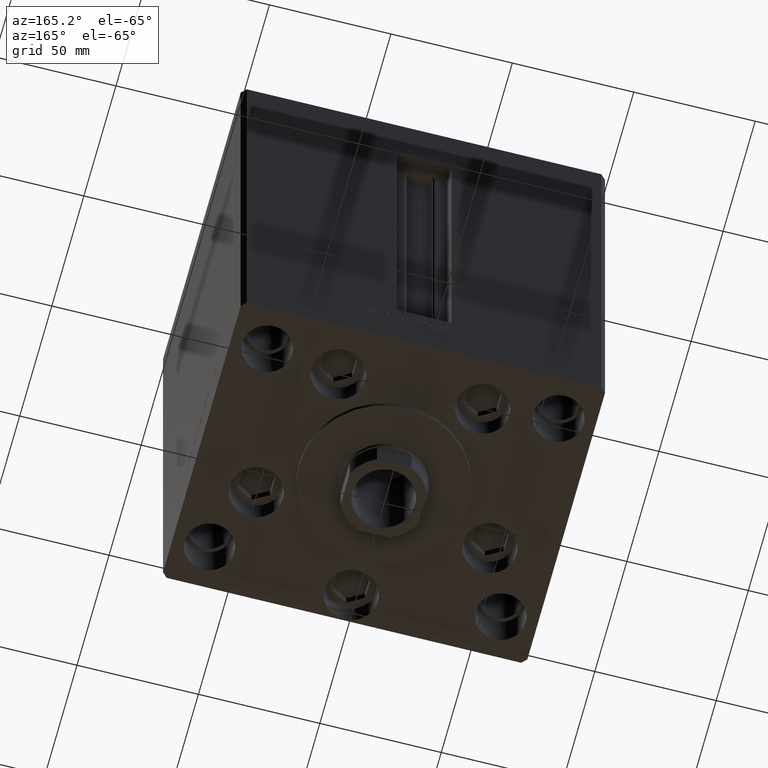
[diagram: clean part render]
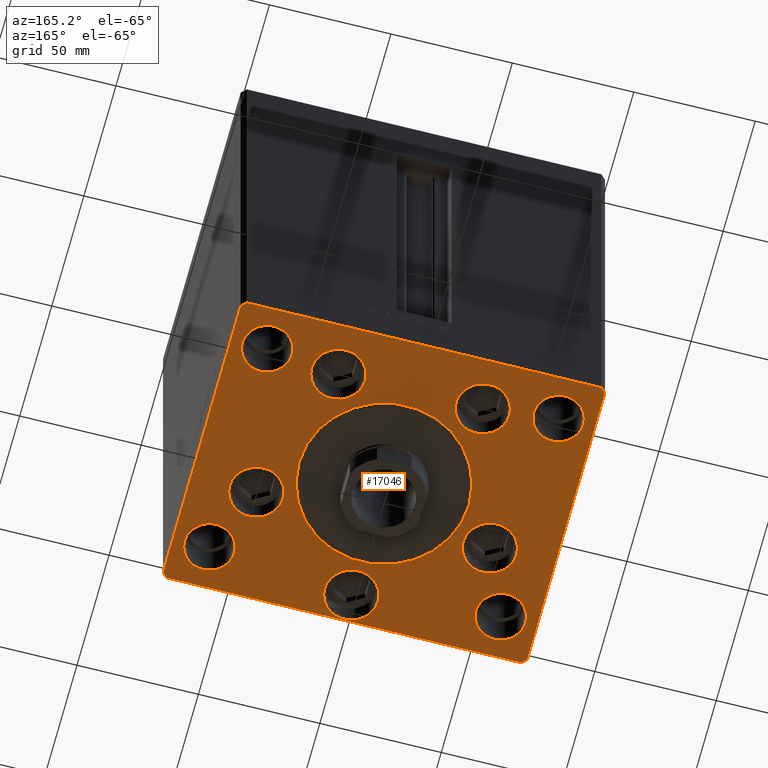
[diagram: same view with one face highlighted and labeled with its STEP entity id]
A machine part, auxiliary view. The second image highlights one B-rep face of the part: STEP entity #17046.
In plain terms, the highlighted planar face has unit normal (0, 0, -1).
Its self-contained STEP definition (entity closure, byte-faithful):
#20 = LINE ( 'NONE', #3733, #6357 ) ;
#53 = DIRECTION ( 'NONE',  ( 0.000000000000000000, 0.000000000000000000, 1.000000000000000000 ) ) ;
#216 = CARTESIAN_POINT ( 'NONE',  ( 0.000000000000000000, 0.000000000000000000, 0.000000000000000000 ) ) ;
#555 = CIRCLE ( 'NONE', #14800, 11.00000000000000355 ) ;
#596 = ORIENTED_EDGE ( 'NONE', *, *, #29834, .F. ) ;
#1019 = DIRECTION ( 'NONE',  ( 1.000000000000000000, 7.604267291953125828E-16, 0.000000000000000000 ) ) ;
#1201 = ORIENTED_EDGE ( 'NONE', *, *, #15099, .T. ) ;
#1424 = DIRECTION ( 'NONE',  ( -0.7071067811865549002, -0.7071067811865401342, 0.000000000000000000 ) ) ;
#1475 = CIRCLE ( 'NONE', #12538, 10.24999999999999467 ) ;
#1541 = CARTESIAN_POINT ( 'NONE',  ( 60.00000000000000000, 45.00000000000000000, 0.000000000000000000 ) ) ;
#1548 = VERTEX_POINT ( 'NONE', #33036 ) ;
#1617 = DIRECTION ( 'NONE',  ( 0.000000000000000000, 0.000000000000000000, 1.000000000000000000 ) ) ;
#2100 = VERTEX_POINT ( 'NONE', #2256 ) ;
#2256 = CARTESIAN_POINT ( 'NONE',  ( -73.00000000000001421, -62.50000000000002842, 0.000000000000000000 ) ) ;
#2478 = ORIENTED_EDGE ( 'NONE', *, *, #35530, .F. ) ;
#2622 = DIRECTION ( 'NONE',  ( 0.000000000000000000, 0.000000000000000000, 1.000000000000000000 ) ) ;
#2644 = ORIENTED_EDGE ( 'NONE', *, *, #39105, .F. ) ;
#3153 = EDGE_CURVE ( 'NONE', #23033, #22807, #44744, .T. ) ;
#3193 = ORIENTED_EDGE ( 'NONE', *, *, #23456, .F. ) ;
#3212 = FACE_OUTER_BOUND ( 'NONE', #3582, .T. ) ;
#3232 = CIRCLE ( 'NONE', #32426, 10.25000000000000178 ) ;
#3278 = CIRCLE ( 'NONE', #30095, 11.00000000000000355 ) ;
#3454 = DIRECTION ( 'NONE',  ( 1.000000000000000000, 0.000000000000000000, 0.000000000000000000 ) ) ;
#3484 = EDGE_CURVE ( 'NONE', #11211, #1548, #15521, .T. ) ;
#3582 = EDGE_LOOP ( 'NONE', ( #11530, #18987, #1201, #7424, #20751, #32318, #40150, #26350 ) ) ;
#3733 = CARTESIAN_POINT ( 'NONE',  ( -75.00000000000000000, 60.50000000000000000, 0.000000000000000000 ) ) ;
#3886 = DIRECTION ( 'NONE',  ( 0.000000000000000000, 0.000000000000000000, 1.000000000000000000 ) ) ;
#3925 = CIRCLE ( 'NONE', #23636, 35.00000000000000711 ) ;
#4376 = CIRCLE ( 'NONE', #41523, 11.00000000000000355 ) ;
#4592 = DIRECTION ( 'NONE',  ( 1.000000000000000000, 0.000000000000000000, 0.000000000000000000 ) ) ;
#4864 = DIRECTION ( 'NONE',  ( 1.000000000000000000, 0.000000000000000000, 0.000000000000000000 ) ) ;
#5010 = VERTEX_POINT ( 'NONE', #16107 ) ;
#5378 = LINE ( 'NONE', #12562, #34495 ) ;
#5461 = EDGE_LOOP ( 'NONE', ( #16171, #45464 ) ) ;
#5568 = DIRECTION ( 'NONE',  ( 1.000000000000000000, 0.000000000000000000, 0.000000000000000000 ) ) ;
#5651 = DIRECTION ( 'NONE',  ( 0.000000000000000000, 0.000000000000000000, 1.000000000000000000 ) ) ;
#5964 = AXIS2_PLACEMENT_3D ( 'NONE', #14152, #29227, #14865 ) ;
#6009 = AXIS2_PLACEMENT_3D ( 'NONE', #47197, #13053, #46946 ) ;
#6216 = CARTESIAN_POINT ( 'NONE',  ( 0.000000000000000000, -6.938893903907228378E-15, 0.000000000000000000 ) ) ;
#6357 = VECTOR ( 'NONE', #11409, 1000.000000000000000 ) ;
#6404 = VERTEX_POINT ( 'NONE', #20192 ) ;
#6700 = VERTEX_POINT ( 'NONE', #40184 ) ;
#6969 = CARTESIAN_POINT ( 'NONE',  ( -49.75000000000000000, -45.00000000000000000, 0.000000000000000000 ) ) ;
#6994 = CARTESIAN_POINT ( 'NONE',  ( 60.00000000000000000, 45.00000000000000000, 0.000000000000000000 ) ) ;
#7273 = EDGE_CURVE ( 'NONE', #48582, #32193, #5378, .T. ) ;
#7418 = CARTESIAN_POINT ( 'NONE',  ( 75.00000000000001421, 60.50000000000002842, 0.000000000000000000 ) ) ;
#7424 = ORIENTED_EDGE ( 'NONE', *, *, #23505, .T. ) ;
#7549 = EDGE_LOOP ( 'NONE', ( #31191, #17491 ) ) ;
#7767 = CARTESIAN_POINT ( 'NONE',  ( 49.75000000000000000, 45.00000000000000000, 0.000000000000000000 ) ) ;
#7791 = EDGE_LOOP ( 'NONE', ( #3193, #2644 ) ) ;
#8218 = VERTEX_POINT ( 'NONE', #16866 ) ;
#8571 = VECTOR ( 'NONE', #24242, 1000.000000000000000 ) ;
#8871 = VERTEX_POINT ( 'NONE', #20124 ) ;
#9775 = DIRECTION ( 'NONE',  ( 1.000000000000000000, 0.000000000000000000, 0.000000000000000000 ) ) ;
#9859 = VERTEX_POINT ( 'NONE', #15006 ) ;
#9910 = AXIS2_PLACEMENT_3D ( 'NONE', #32534, #1617, #5568 ) ;
#10165 = CARTESIAN_POINT ( 'NONE',  ( 48.08326112068523628, -16.99999999999998934, 0.000000000000000000 ) ) ;
#10215 = ORIENTED_EDGE ( 'NONE', *, *, #13777, .F. ) ;
#10248 = CARTESIAN_POINT ( 'NONE',  ( -75.00000000000000000, 60.50000000000000000, 0.000000000000000000 ) ) ;
#10423 = EDGE_LOOP ( 'NONE', ( #2478, #21545 ) ) ;
#10626 = DIRECTION ( 'NONE',  ( -0.7071067811865524577, 0.7071067811865426878, 0.000000000000000000 ) ) ;
#11211 = VERTEX_POINT ( 'NONE', #21565 ) ;
#11347 = EDGE_CURVE ( 'NONE', #22807, #48582, #35637, .T. ) ;
#11409 = DIRECTION ( 'NONE',  ( 0.000000000000000000, -1.000000000000000000, 0.000000000000000000 ) ) ;
#11530 = ORIENTED_EDGE ( 'NONE', *, *, #34979, .T. ) ;
#11991 = EDGE_LOOP ( 'NONE', ( #23647, #38042 ) ) ;
#12258 = VECTOR ( 'NONE', #10626, 1000.000000000000000 ) ;
#12538 = AXIS2_PLACEMENT_3D ( 'NONE', #1541, #46815, #35922 ) ;
#12540 = CARTESIAN_POINT ( 'NONE',  ( -48.08326112068523628, -16.99999999999998934, 0.000000000000000000 ) ) ;
#12562 = CARTESIAN_POINT ( 'NONE',  ( -72.99999999999998579, 62.49999999999997158, 0.000000000000000000 ) ) ;
#12596 = CARTESIAN_POINT ( 'NONE',  ( -40.73102073172061921, 41.43749999999997868, 0.000000000000000000 ) ) ;
#12900 = AXIS2_PLACEMENT_3D ( 'NONE', #21638, #2622, #20889 ) ;
#13053 = DIRECTION ( 'NONE',  ( 0.000000000000000000, 0.000000000000000000, 1.000000000000000000 ) ) ;
#13384 = EDGE_CURVE ( 'NONE', #2100, #6700, #15878, .T. ) ;
#13556 = CARTESIAN_POINT ( 'NONE',  ( -35.00000000000000711, -6.938893903907228378E-15, 0.000000000000000000 ) ) ;
#13664 = VERTEX_POINT ( 'NONE', #24624 ) ;
#13777 = EDGE_CURVE ( 'NONE', #27906, #40421, #3925, .T. ) ;
#13876 = DIRECTION ( 'NONE',  ( 0.000000000000000000, 0.000000000000000000, 1.000000000000000000 ) ) ;
#14152 = CARTESIAN_POINT ( 'NONE',  ( -60.00000000000000711, -45.00000000000000000, 0.000000000000000000 ) ) ;
#14234 = CARTESIAN_POINT ( 'NONE',  ( 60.00000000000000711, -45.00000000000000000, 0.000000000000000000 ) ) ;
#14353 = FACE_BOUND ( 'NONE', #11991, .T. ) ;
#14530 = AXIS2_PLACEMENT_3D ( 'NONE', #39549, #5651, #20719 ) ;
#14800 = AXIS2_PLACEMENT_3D ( 'NONE', #10165, #13876, #3454 ) ;
#14865 = DIRECTION ( 'NONE',  ( 1.000000000000000000, 0.000000000000000000, 0.000000000000000000 ) ) ;
#14875 = DIRECTION ( 'NONE',  ( 0.000000000000000000, 0.000000000000000000, 1.000000000000000000 ) ) ;
#15006 = CARTESIAN_POINT ( 'NONE',  ( 70.25000000000000000, 45.00000000000000000, 0.000000000000000000 ) ) ;
#15099 = EDGE_CURVE ( 'NONE', #6700, #13664, #21426, .T. ) ;
#15443 = VECTOR ( 'NONE', #42751, 1000.000000000000114 ) ;
#15521 = CIRCLE ( 'NONE', #9910, 11.00000000000000355 ) ;
#15527 = DIRECTION ( 'NONE',  ( 0.000000000000000000, 1.000000000000000000, 0.000000000000000000 ) ) ;
#15765 = DIRECTION ( 'NONE',  ( 0.000000000000000000, 0.000000000000000000, 1.000000000000000000 ) ) ;
#15789 = CIRCLE ( 'NONE', #16600, 11.00000000000000355 ) ;
#15866 = CARTESIAN_POINT ( 'NONE',  ( 73.00000000000001421, 62.50000000000000000, 0.000000000000000000 ) ) ;
#15878 = LINE ( 'NONE', #46045, #19680 ) ;
#15984 = EDGE_CURVE ( 'NONE', #8871, #5010, #21350, .T. ) ;
#16027 = DIRECTION ( 'NONE',  ( 1.000000000000000000, 0.000000000000000000, 0.000000000000000000 ) ) ;
#16107 = CARTESIAN_POINT ( 'NONE',  ( -49.74999999999999289, 45.00000000000000711, 0.000000000000000000 ) ) ;
#16171 = ORIENTED_EDGE ( 'NONE', *, *, #47708, .F. ) ;
#16219 = EDGE_CURVE ( 'NONE', #38872, #38965, #29276, .T. ) ;
#16480 = EDGE_CURVE ( 'NONE', #25667, #36040, #3232, .T. ) ;
#16600 = AXIS2_PLACEMENT_3D ( 'NONE', #18479, #3886, #23146 ) ;
#16668 = VERTEX_POINT ( 'NONE', #6969 ) ;
#16677 = CIRCLE ( 'NONE', #24574, 11.00000000000000355 ) ;
#16866 = CARTESIAN_POINT ( 'NONE',  ( -59.08326112068523628, -16.99999999999998934, 0.000000000000000000 ) ) ;
#16870 = EDGE_LOOP ( 'NONE', ( #30954, #20675 ) ) ;
#17046 = ADVANCED_FACE ( 'NONE', ( #43771, #21001, #18056, #33140, #36130, #24980, #21252, #14353, #40801, #37103, #3212 ), #41278, .T. ) ;
#17118 = CARTESIAN_POINT ( 'NONE',  ( 11.00000000000000000, -51.00000000000000000, 0.000000000000000000 ) ) ;
#17240 = CARTESIAN_POINT ( 'NONE',  ( 73.00000000000001421, -62.49999999999991473, 0.000000000000000000 ) ) ;
#17491 = ORIENTED_EDGE ( 'NONE', *, *, #16480, .F. ) ;
#17599 = VERTEX_POINT ( 'NONE', #30948 ) ;
#17676 = CIRCLE ( 'NONE', #12900, 35.00000000000000711 ) ;
#17849 = CIRCLE ( 'NONE', #47870, 11.00000000000000000 ) ;
#18056 = FACE_BOUND ( 'NONE', #46239, .T. ) ;
#18081 = CARTESIAN_POINT ( 'NONE',  ( -70.25000000000000000, -45.00000000000000000, 0.000000000000000000 ) ) ;
#18479 = CARTESIAN_POINT ( 'NONE',  ( 29.73102073172061921, 41.43749999999997868, 0.000000000000000000 ) ) ;
#18758 = CARTESIAN_POINT ( 'NONE',  ( 75.00000000000001421, 60.50000000000002842, 0.000000000000000000 ) ) ;
#18782 = CIRCLE ( 'NONE', #21913, 11.00000000000000000 ) ;
#18830 = EDGE_CURVE ( 'NONE', #6404, #34937, #15789, .T. ) ;
#18880 = CIRCLE ( 'NONE', #22821, 11.00000000000000000 ) ;
#18987 = ORIENTED_EDGE ( 'NONE', *, *, #13384, .T. ) ;
#19140 = EDGE_CURVE ( 'NONE', #32193, #41608, #20, .T. ) ;
#19417 = DIRECTION ( 'NONE',  ( 0.000000000000000000, 0.000000000000000000, 1.000000000000000000 ) ) ;
#19680 = VECTOR ( 'NONE', #1019, 1000.000000000000000 ) ;
#19810 = CARTESIAN_POINT ( 'NONE',  ( 73.00000000000001421, 62.50000000000000000, 0.000000000000000000 ) ) ;
#19927 = CARTESIAN_POINT ( 'NONE',  ( 75.00000000000001421, -60.49999999999992184, 0.000000000000000000 ) ) ;
#20105 = CIRCLE ( 'NONE', #38285, 10.24999999999999467 ) ;
#20124 = CARTESIAN_POINT ( 'NONE',  ( -70.25000000000000000, 45.00000000000000711, 0.000000000000000000 ) ) ;
#20192 = CARTESIAN_POINT ( 'NONE',  ( 40.73102073172061921, 41.43749999999997868, 0.000000000000000000 ) ) ;
#20537 = VECTOR ( 'NONE', #48158, 999.9999999999998863 ) ;
#20675 = ORIENTED_EDGE ( 'NONE', *, *, #33636, .F. ) ;
#20719 = DIRECTION ( 'NONE',  ( 1.000000000000000000, 0.000000000000000000, 0.000000000000000000 ) ) ;
#20751 = ORIENTED_EDGE ( 'NONE', *, *, #3153, .T. ) ;
#20818 = EDGE_CURVE ( 'NONE', #5010, #8871, #38000, .T. ) ;
#20889 = DIRECTION ( 'NONE',  ( 1.000000000000000000, 0.000000000000000000, 0.000000000000000000 ) ) ;
#21001 = FACE_BOUND ( 'NONE', #5461, .T. ) ;
#21252 = FACE_BOUND ( 'NONE', #16870, .T. ) ;
#21350 = CIRCLE ( 'NONE', #22934, 10.25000000000000178 ) ;
#21426 = LINE ( 'NONE', #17240, #20537 ) ;
#21490 = CARTESIAN_POINT ( 'NONE',  ( -29.73102073172061921, 41.43749999999997868, 0.000000000000000000 ) ) ;
#21545 = ORIENTED_EDGE ( 'NONE', *, *, #16219, .F. ) ;
#21565 = CARTESIAN_POINT ( 'NONE',  ( 37.08326112068522917, -16.99999999999998934, 0.000000000000000000 ) ) ;
#21638 = CARTESIAN_POINT ( 'NONE',  ( 0.000000000000000000, -6.938893903907228378E-15, 0.000000000000000000 ) ) ;
#21731 = DIRECTION ( 'NONE',  ( 1.000000000000000000, 0.000000000000000000, 0.000000000000000000 ) ) ;
#21774 = DIRECTION ( 'NONE',  ( 1.000000000000000000, 0.000000000000000000, 0.000000000000000000 ) ) ;
#21776 = CIRCLE ( 'NONE', #6009, 10.25000000000000178 ) ;
#21798 = CARTESIAN_POINT ( 'NONE',  ( -60.00000000000000000, 45.00000000000000711, 0.000000000000000000 ) ) ;
#21913 = AXIS2_PLACEMENT_3D ( 'NONE', #37160, #29720, #33202 ) ;
#22029 = CARTESIAN_POINT ( 'NONE',  ( -48.08326112068523628, -16.99999999999998934, 0.000000000000000000 ) ) ;
#22433 = CARTESIAN_POINT ( 'NONE',  ( 29.73102073172061921, 41.43749999999997868, 0.000000000000000000 ) ) ;
#22807 = VERTEX_POINT ( 'NONE', #19810 ) ;
#22821 = AXIS2_PLACEMENT_3D ( 'NONE', #21490, #40787, #21731 ) ;
#22919 = LINE ( 'NONE', #19927, #36450 ) ;
#22934 = AXIS2_PLACEMENT_3D ( 'NONE', #21798, #48761, #16027 ) ;
#23033 = VERTEX_POINT ( 'NONE', #7418 ) ;
#23104 = VERTEX_POINT ( 'NONE', #12596 ) ;
#23146 = DIRECTION ( 'NONE',  ( 1.000000000000000000, 0.000000000000000000, 0.000000000000000000 ) ) ;
#23456 = EDGE_CURVE ( 'NONE', #17599, #8218, #3278, .T. ) ;
#23505 = EDGE_CURVE ( 'NONE', #13664, #23033, #22919, .T. ) ;
#23636 = AXIS2_PLACEMENT_3D ( 'NONE', #6216, #25014, #21774 ) ;
#23647 = ORIENTED_EDGE ( 'NONE', *, *, #20818, .F. ) ;
#24242 = DIRECTION ( 'NONE',  ( -1.000000000000000000, -1.901066822988281950E-16, 0.000000000000000000 ) ) ;
#24280 = EDGE_CURVE ( 'NONE', #34937, #6404, #16677, .T. ) ;
#24479 = VERTEX_POINT ( 'NONE', #7767 ) ;
#24574 = AXIS2_PLACEMENT_3D ( 'NONE', #22433, #41738, #48928 ) ;
#24624 = CARTESIAN_POINT ( 'NONE',  ( 75.00000000000001421, -60.49999999999992184, 0.000000000000000000 ) ) ;
#24980 = FACE_BOUND ( 'NONE', #7791, .T. ) ;
#25014 = DIRECTION ( 'NONE',  ( 0.000000000000000000, 0.000000000000000000, 1.000000000000000000 ) ) ;
#25667 = VERTEX_POINT ( 'NONE', #28631 ) ;
#25715 = CIRCLE ( 'NONE', #5964, 10.25000000000000178 ) ;
#25760 = DIRECTION ( 'NONE',  ( 1.000000000000000000, 0.000000000000000000, 0.000000000000000000 ) ) ;
#26350 = ORIENTED_EDGE ( 'NONE', *, *, #19140, .T. ) ;
#26763 = DIRECTION ( 'NONE',  ( 1.000000000000000000, 0.000000000000000000, 0.000000000000000000 ) ) ;
#27377 = ORIENTED_EDGE ( 'NONE', *, *, #18830, .F. ) ;
#27906 = VERTEX_POINT ( 'NONE', #32317 ) ;
#28125 = CARTESIAN_POINT ( 'NONE',  ( 70.25000000000000000, -45.00000000000000000, 0.000000000000000000 ) ) ;
#28631 = CARTESIAN_POINT ( 'NONE',  ( 49.75000000000000000, -45.00000000000000000, 0.000000000000000000 ) ) ;
#29227 = DIRECTION ( 'NONE',  ( 0.000000000000000000, 0.000000000000000000, 1.000000000000000000 ) ) ;
#29276 = CIRCLE ( 'NONE', #37189, 11.00000000000000000 ) ;
#29720 = DIRECTION ( 'NONE',  ( 0.000000000000000000, 0.000000000000000000, 1.000000000000000000 ) ) ;
#29834 = EDGE_CURVE ( 'NONE', #40421, #27906, #17676, .T. ) ;
#30095 = AXIS2_PLACEMENT_3D ( 'NONE', #12540, #15765, #4864 ) ;
#30380 = ORIENTED_EDGE ( 'NONE', *, *, #3484, .F. ) ;
#30668 = ORIENTED_EDGE ( 'NONE', *, *, #31506, .F. ) ;
#30948 = CARTESIAN_POINT ( 'NONE',  ( -37.08326112068522917, -16.99999999999998934, 0.000000000000000000 ) ) ;
#30954 = ORIENTED_EDGE ( 'NONE', *, *, #47216, .F. ) ;
#31100 = VERTEX_POINT ( 'NONE', #46795 ) ;
#31191 = ORIENTED_EDGE ( 'NONE', *, *, #40398, .F. ) ;
#31266 = VERTEX_POINT ( 'NONE', #18081 ) ;
#31377 = LINE ( 'NONE', #46471, #15443 ) ;
#31506 = EDGE_CURVE ( 'NONE', #16668, #31266, #40584, .T. ) ;
#31883 = ORIENTED_EDGE ( 'NONE', *, *, #43226, .F. ) ;
#32193 = VERTEX_POINT ( 'NONE', #10248 ) ;
#32317 = CARTESIAN_POINT ( 'NONE',  ( 35.00000000000000711, -2.652630106891490698E-15, 0.000000000000000000 ) ) ;
#32318 = ORIENTED_EDGE ( 'NONE', *, *, #11347, .T. ) ;
#32426 = AXIS2_PLACEMENT_3D ( 'NONE', #14234, #36978, #9775 ) ;
#32534 = CARTESIAN_POINT ( 'NONE',  ( 48.08326112068523628, -16.99999999999998934, 0.000000000000000000 ) ) ;
#33036 = CARTESIAN_POINT ( 'NONE',  ( 59.08326112068523628, -16.99999999999998934, 0.000000000000000000 ) ) ;
#33140 = FACE_BOUND ( 'NONE', #45757, .T. ) ;
#33188 = CARTESIAN_POINT ( 'NONE',  ( 0.000000000000000000, -51.00000000000000000, 0.000000000000000000 ) ) ;
#33202 = DIRECTION ( 'NONE',  ( 1.000000000000000000, 0.000000000000000000, 0.000000000000000000 ) ) ;
#33636 = EDGE_CURVE ( 'NONE', #24479, #9859, #20105, .T. ) ;
#33860 = DIRECTION ( 'NONE',  ( 1.000000000000000000, 0.000000000000000000, 0.000000000000000000 ) ) ;
#33974 = CARTESIAN_POINT ( 'NONE',  ( -75.00000000000000000, -60.50000000000004263, 0.000000000000000000 ) ) ;
#34495 = VECTOR ( 'NONE', #1424, 1000.000000000000000 ) ;
#34676 = ORIENTED_EDGE ( 'NONE', *, *, #24280, .F. ) ;
#34935 = CARTESIAN_POINT ( 'NONE',  ( -11.00000000000000000, -51.00000000000000000, 0.000000000000000000 ) ) ;
#34937 = VERTEX_POINT ( 'NONE', #35827 ) ;
#34979 = EDGE_CURVE ( 'NONE', #41608, #2100, #31377, .T. ) ;
#35530 = EDGE_CURVE ( 'NONE', #38965, #38872, #17849, .T. ) ;
#35637 = LINE ( 'NONE', #15866, #8571 ) ;
#35827 = CARTESIAN_POINT ( 'NONE',  ( 18.73102073172061921, 41.43749999999997868, 0.000000000000000000 ) ) ;
#35922 = DIRECTION ( 'NONE',  ( 1.000000000000000000, 0.000000000000000000, 0.000000000000000000 ) ) ;
#36040 = VERTEX_POINT ( 'NONE', #28125 ) ;
#36130 = FACE_BOUND ( 'NONE', #10423, .T. ) ;
#36450 = VECTOR ( 'NONE', #15527, 1000.000000000000000 ) ;
#36978 = DIRECTION ( 'NONE',  ( 0.000000000000000000, 0.000000000000000000, 1.000000000000000000 ) ) ;
#37103 = FACE_BOUND ( 'NONE', #7549, .T. ) ;
#37140 = DIRECTION ( 'NONE',  ( 0.000000000000000000, 0.000000000000000000, 1.000000000000000000 ) ) ;
#37160 = CARTESIAN_POINT ( 'NONE',  ( -29.73102073172061921, 41.43749999999997868, 0.000000000000000000 ) ) ;
#37189 = AXIS2_PLACEMENT_3D ( 'NONE', #45174, #19417, #41208 ) ;
#37825 = CARTESIAN_POINT ( 'NONE',  ( -72.99999999999998579, 62.49999999999997158, 0.000000000000000000 ) ) ;
#38000 = CIRCLE ( 'NONE', #47465, 10.25000000000000178 ) ;
#38042 = ORIENTED_EDGE ( 'NONE', *, *, #15984, .F. ) ;
#38285 = AXIS2_PLACEMENT_3D ( 'NONE', #6994, #53, #26763 ) ;
#38727 = DIRECTION ( 'NONE',  ( 0.000000000000000000, 0.000000000000000000, 1.000000000000000000 ) ) ;
#38872 = VERTEX_POINT ( 'NONE', #34935 ) ;
#38965 = VERTEX_POINT ( 'NONE', #17118 ) ;
#39055 = EDGE_CURVE ( 'NONE', #31266, #16668, #25715, .T. ) ;
#39061 = ORIENTED_EDGE ( 'NONE', *, *, #39055, .F. ) ;
#39105 = EDGE_CURVE ( 'NONE', #8218, #17599, #4376, .T. ) ;
#39549 = CARTESIAN_POINT ( 'NONE',  ( -60.00000000000000711, -45.00000000000000000, 0.000000000000000000 ) ) ;
#40150 = ORIENTED_EDGE ( 'NONE', *, *, #7273, .T. ) ;
#40184 = CARTESIAN_POINT ( 'NONE',  ( 73.00000000000001421, -62.49999999999991473, 0.000000000000000000 ) ) ;
#40398 = EDGE_CURVE ( 'NONE', #36040, #25667, #21776, .T. ) ;
#40421 = VERTEX_POINT ( 'NONE', #13556 ) ;
#40584 = CIRCLE ( 'NONE', #14530, 10.25000000000000178 ) ;
#40597 = DIRECTION ( 'NONE',  ( 1.000000000000000000, 0.000000000000000000, 0.000000000000000000 ) ) ;
#40711 = EDGE_LOOP ( 'NONE', ( #596, #10215 ) ) ;
#40787 = DIRECTION ( 'NONE',  ( 0.000000000000000000, 0.000000000000000000, 1.000000000000000000 ) ) ;
#40801 = FACE_BOUND ( 'NONE', #44652, .T. ) ;
#41208 = DIRECTION ( 'NONE',  ( 1.000000000000000000, 0.000000000000000000, 0.000000000000000000 ) ) ;
#41278 = PLANE ( 'NONE',  #47359 ) ;
#41523 = AXIS2_PLACEMENT_3D ( 'NONE', #22029, #37140, #40597 ) ;
#41608 = VERTEX_POINT ( 'NONE', #33974 ) ;
#41738 = DIRECTION ( 'NONE',  ( 0.000000000000000000, 0.000000000000000000, 1.000000000000000000 ) ) ;
#42751 = DIRECTION ( 'NONE',  ( 0.7071067811865474617, -0.7071067811865474617, 0.000000000000000000 ) ) ;
#42919 = CARTESIAN_POINT ( 'NONE',  ( -60.00000000000000000, 45.00000000000000711, 0.000000000000000000 ) ) ;
#43226 = EDGE_CURVE ( 'NONE', #1548, #11211, #555, .T. ) ;
#43771 = FACE_BOUND ( 'NONE', #40711, .T. ) ;
#44652 = EDGE_LOOP ( 'NONE', ( #30668, #39061 ) ) ;
#44744 = LINE ( 'NONE', #18758, #12258 ) ;
#44753 = DIRECTION ( 'NONE',  ( -0.000000000000000000, 0.000000000000000000, 1.000000000000000000 ) ) ;
#45081 = EDGE_CURVE ( 'NONE', #23104, #31100, #18782, .T. ) ;
#45174 = CARTESIAN_POINT ( 'NONE',  ( 0.000000000000000000, -51.00000000000000000, 0.000000000000000000 ) ) ;
#45464 = ORIENTED_EDGE ( 'NONE', *, *, #45081, .F. ) ;
#45757 = EDGE_LOOP ( 'NONE', ( #31883, #30380 ) ) ;
#46045 = CARTESIAN_POINT ( 'NONE',  ( -73.00000000000001421, -62.50000000000002842, 0.000000000000000000 ) ) ;
#46239 = EDGE_LOOP ( 'NONE', ( #27377, #34676 ) ) ;
#46471 = CARTESIAN_POINT ( 'NONE',  ( -75.00000000000000000, -60.50000000000004263, 0.000000000000000000 ) ) ;
#46795 = CARTESIAN_POINT ( 'NONE',  ( -18.73102073172061921, 41.43749999999997868, 0.000000000000000000 ) ) ;
#46815 = DIRECTION ( 'NONE',  ( 0.000000000000000000, 0.000000000000000000, 1.000000000000000000 ) ) ;
#46946 = DIRECTION ( 'NONE',  ( 1.000000000000000000, 0.000000000000000000, 0.000000000000000000 ) ) ;
#47197 = CARTESIAN_POINT ( 'NONE',  ( 60.00000000000000711, -45.00000000000000000, 0.000000000000000000 ) ) ;
#47216 = EDGE_CURVE ( 'NONE', #9859, #24479, #1475, .T. ) ;
#47359 = AXIS2_PLACEMENT_3D ( 'NONE', #216, #44753, #33860 ) ;
#47465 = AXIS2_PLACEMENT_3D ( 'NONE', #42919, #38727, #4592 ) ;
#47708 = EDGE_CURVE ( 'NONE', #31100, #23104, #18880, .T. ) ;
#47870 = AXIS2_PLACEMENT_3D ( 'NONE', #33188, #14875, #25760 ) ;
#48158 = DIRECTION ( 'NONE',  ( 0.7071067811865489050, 0.7071067811865462405, 0.000000000000000000 ) ) ;
#48582 = VERTEX_POINT ( 'NONE', #37825 ) ;
#48761 = DIRECTION ( 'NONE',  ( 0.000000000000000000, 0.000000000000000000, 1.000000000000000000 ) ) ;
#48928 = DIRECTION ( 'NONE',  ( 1.000000000000000000, 0.000000000000000000, 0.000000000000000000 ) ) ;